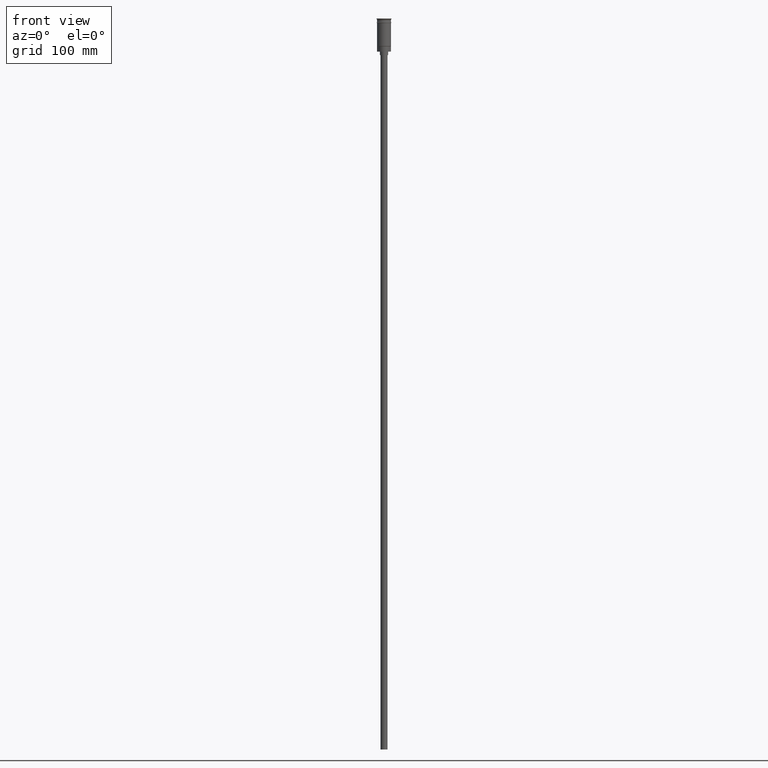
[diagram: clean part render]
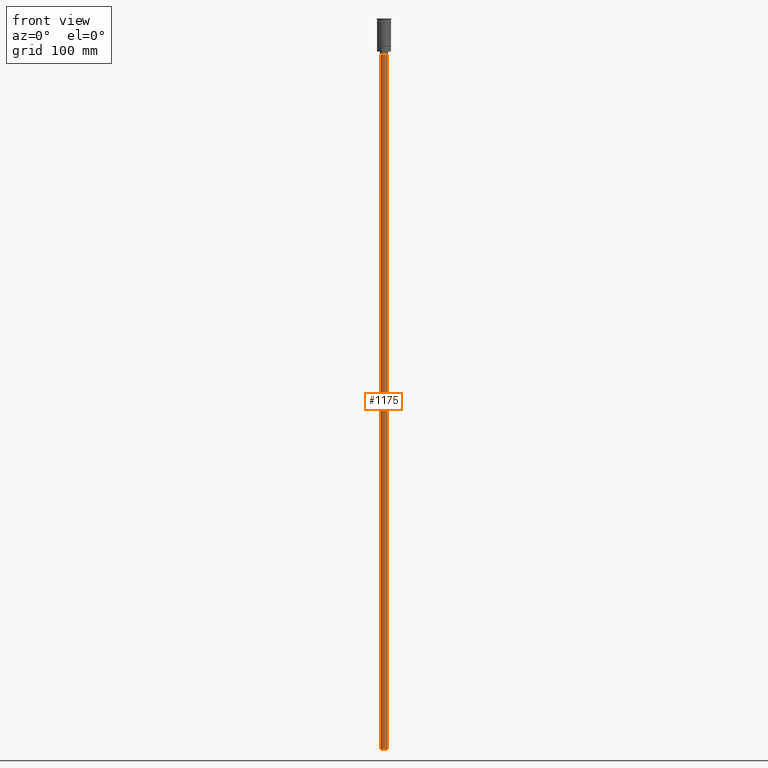
[diagram: same view with one face highlighted and labeled with its STEP entity id]
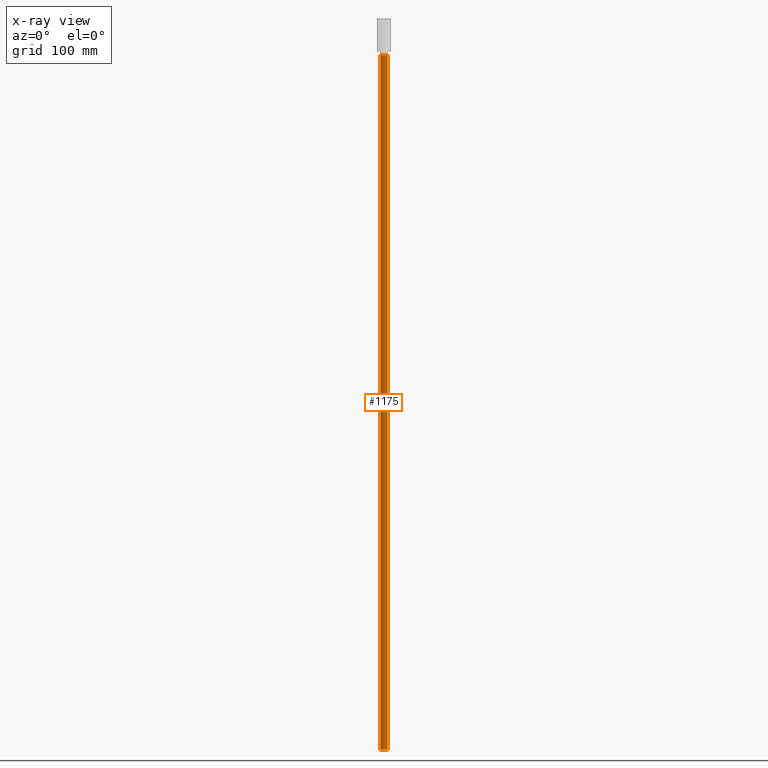
[diagram: x-ray of the same camera — body ghosted, the highlighted face saturated]
A machine part, front view. The second image highlights one B-rep face of the part: STEP entity #1175.
The next image is the same camera in x-ray: the body ghosted, the highlighted face saturated — about 0% of this face is hidden behind the body in this view.
In plain terms, the highlighted cylindrical surface (edge-blend (fillet) strip) has radius 3 mm, axis along (-0, -0, 1).
Its self-contained STEP definition (entity closure, byte-faithful):
#41 = VECTOR ( 'NONE', #763, 1000.000000000000000 ) ;
#172 = DIRECTION ( 'NONE',  ( -0.000000000000000000, -0.000000000000000000, 1.000000000000000000 ) ) ;
#269 = VERTEX_POINT ( 'NONE', #360 ) ;
#318 = EDGE_CURVE ( 'NONE', #624, #1215, #935, .T. ) ;
#331 = VECTOR ( 'NONE', #172, 1000.000000000000000 ) ;
#332 = CARTESIAN_POINT ( 'NONE',  ( 0.000000000000000000, 0.000000000000000000, -628.5000000000000000 ) ) ;
#357 = ORIENTED_EDGE ( 'NONE', *, *, #318, .F. ) ;
#360 = CARTESIAN_POINT ( 'NONE',  ( 3.000000000000000444, 0.000000000000000000, -31.50000000000000000 ) ) ;
#371 = EDGE_CURVE ( 'NONE', #1215, #1174, #902, .T. ) ;
#449 = ORIENTED_EDGE ( 'NONE', *, *, #1382, .T. ) ;
#464 = AXIS2_PLACEMENT_3D ( 'NONE', #1504, #515, #1412 ) ;
#469 = ORIENTED_EDGE ( 'NONE', *, *, #371, .F. ) ;
#486 = DIRECTION ( 'NONE',  ( -0.000000000000000000, -0.000000000000000000, 1.000000000000000000 ) ) ;
#515 = DIRECTION ( 'NONE',  ( 0.000000000000000000, 0.000000000000000000, -1.000000000000000000 ) ) ;
#535 = DIRECTION ( 'NONE',  ( -1.000000000000000000, 0.000000000000000000, 0.000000000000000000 ) ) ;
#541 = DIRECTION ( 'NONE',  ( 0.000000000000000000, 0.000000000000000000, -1.000000000000000000 ) ) ;
#568 = CIRCLE ( 'NONE', #764, 3.000000000000000444 ) ;
#574 = EDGE_LOOP ( 'NONE', ( #469, #357, #622, #449 ) ) ;
#622 = ORIENTED_EDGE ( 'NONE', *, *, #1133, .T. ) ;
#624 = VERTEX_POINT ( 'NONE', #650 ) ;
#650 = CARTESIAN_POINT ( 'NONE',  ( 3.000000000000000444, 0.000000000000000000, -628.5000000000000000 ) ) ;
#733 = CARTESIAN_POINT ( 'NONE',  ( -3.000000000000000444, 3.673940397442060361E-16, -628.5000000000000000 ) ) ;
#763 = DIRECTION ( 'NONE',  ( -0.000000000000000000, -0.000000000000000000, 1.000000000000000000 ) ) ;
#764 = AXIS2_PLACEMENT_3D ( 'NONE', #1374, #541, #535 ) ;
#804 = CARTESIAN_POINT ( 'NONE',  ( 3.000000000000000444, 0.000000000000000000, -628.5000000000000000 ) ) ;
#876 = CARTESIAN_POINT ( 'NONE',  ( -3.000000000000000444, 3.673940397442060361E-16, -628.5000000000000000 ) ) ;
#902 = LINE ( 'NONE', #876, #41 ) ;
#935 = CIRCLE ( 'NONE', #464, 3.000000000000000444 ) ;
#1133 = EDGE_CURVE ( 'NONE', #624, #269, #1418, .T. ) ;
#1174 = VERTEX_POINT ( 'NONE', #1461 ) ;
#1175 = ADVANCED_FACE ( 'NONE', ( #1593 ), #1574, .T. ) ;
#1215 = VERTEX_POINT ( 'NONE', #733 ) ;
#1374 = CARTESIAN_POINT ( 'NONE',  ( 0.000000000000000000, 0.000000000000000000, -31.50000000000000000 ) ) ;
#1382 = EDGE_CURVE ( 'NONE', #269, #1174, #568, .T. ) ;
#1412 = DIRECTION ( 'NONE',  ( -1.000000000000000000, 0.000000000000000000, 0.000000000000000000 ) ) ;
#1418 = LINE ( 'NONE', #804, #331 ) ;
#1461 = CARTESIAN_POINT ( 'NONE',  ( -3.000000000000000444, 3.673940397442060361E-16, -31.50000000000000000 ) ) ;
#1480 = AXIS2_PLACEMENT_3D ( 'NONE', #332, #486, #1481 ) ;
#1481 = DIRECTION ( 'NONE',  ( 1.000000000000000000, 0.000000000000000000, 0.000000000000000000 ) ) ;
#1504 = CARTESIAN_POINT ( 'NONE',  ( 0.000000000000000000, 0.000000000000000000, -628.5000000000000000 ) ) ;
#1574 = CYLINDRICAL_SURFACE ( 'NONE', #1480, 3.000000000000000444 ) ;
#1593 = FACE_OUTER_BOUND ( 'NONE', #574, .T. ) ;